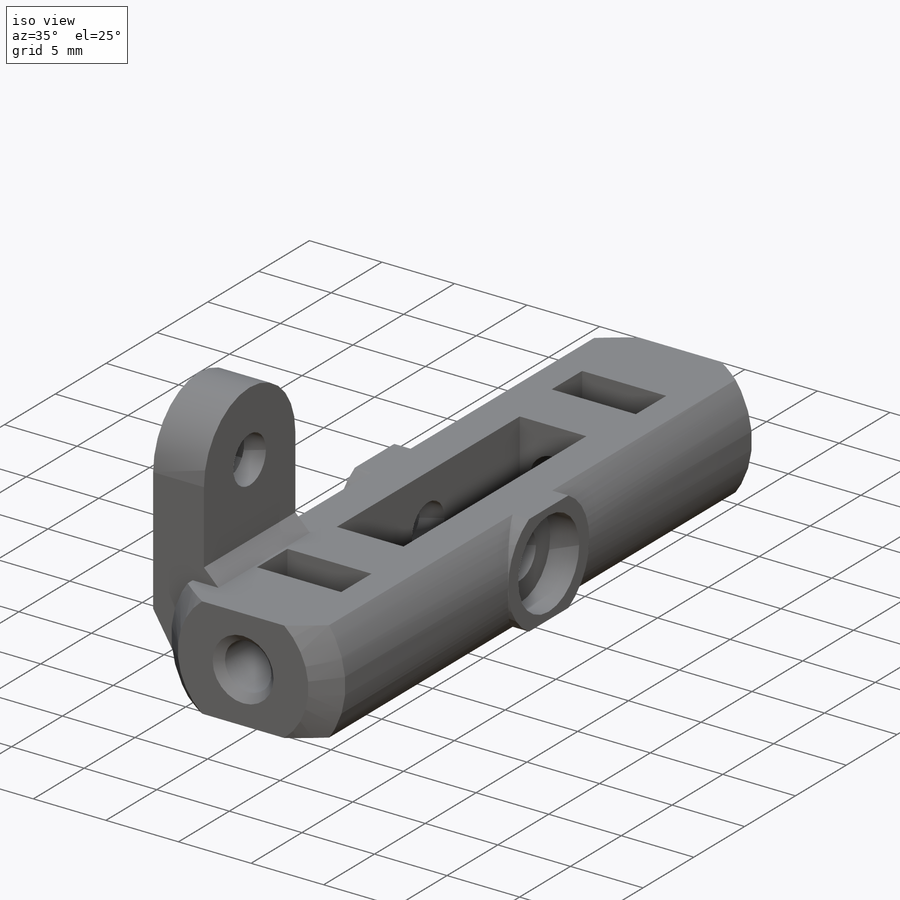
[diagram: iso view]
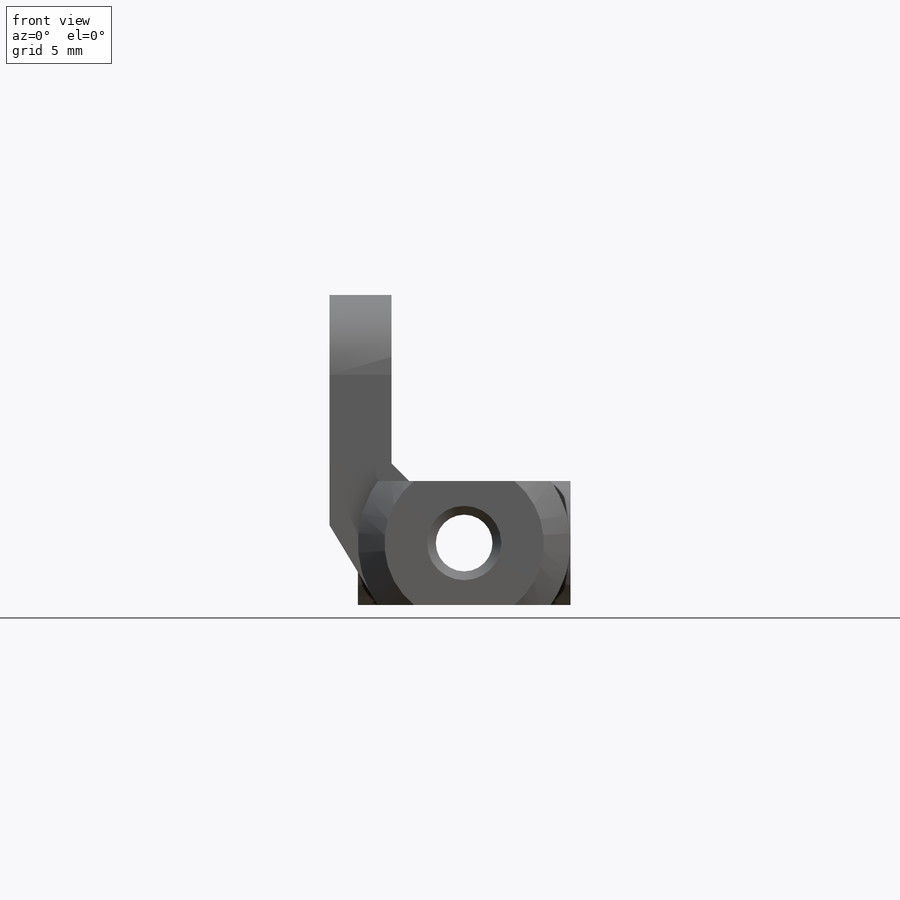
[diagram: front view]
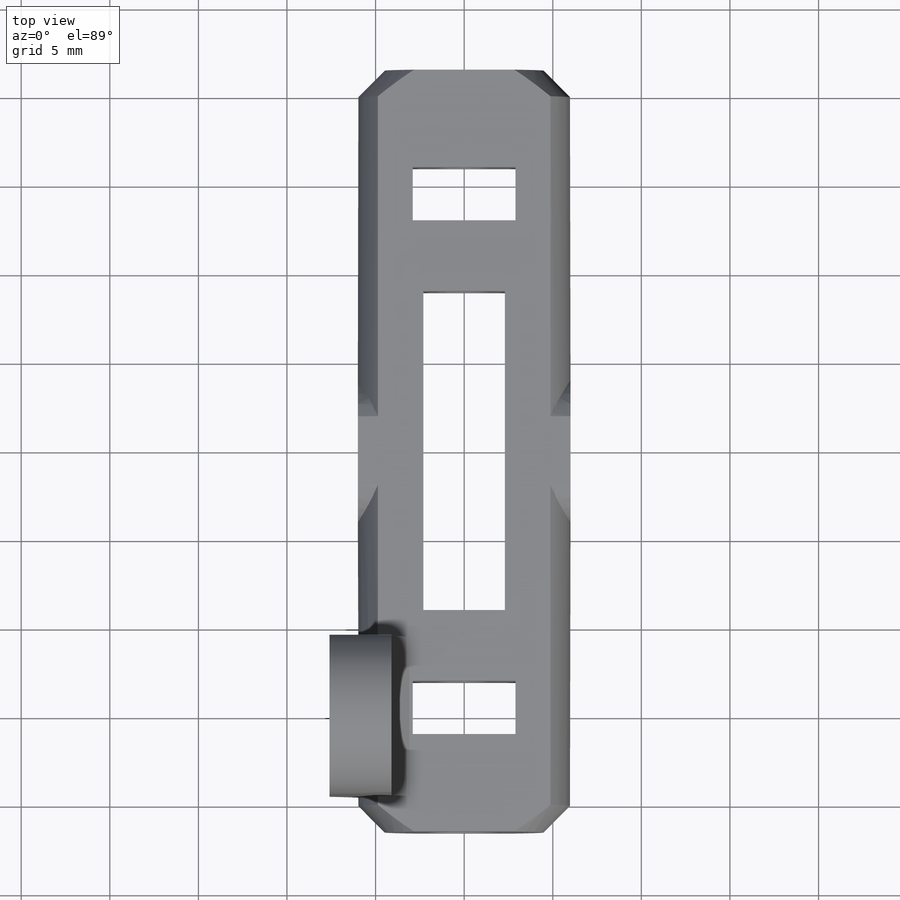
[diagram: top view]
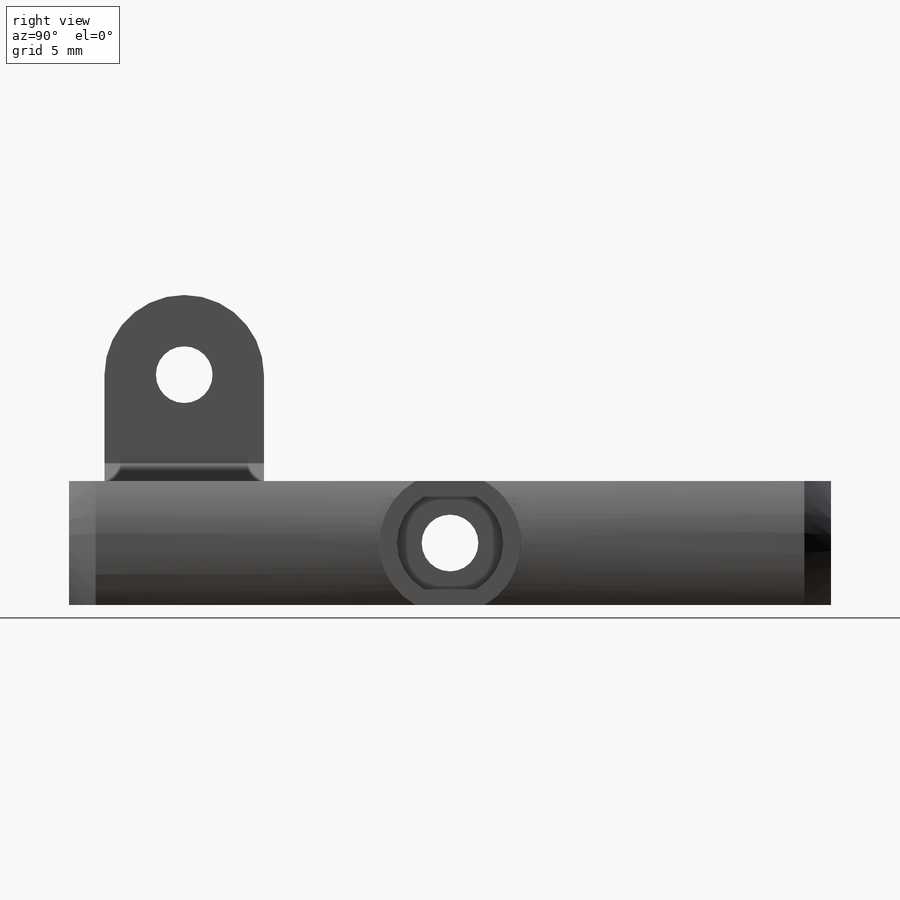
[diagram: right view]
SOLIDWORKS PART (.sldprt)
format: sldprt  version: not decoded by parser v0  size: 349,696 bytes
history: native  units: mm
features: sketch x12, cut_extrude x7, extrude x5, chamfer x2, mirror x2, material x1 (+12 scaffold rows collapsed)
feature tree (41):
  scaffold x12  (default folders/planes/origin — collapsed)
  material  "Material <not specified>"
  sketch  "Sketch1"  dims[D1=6.0mm D2=7.0mm]
  extrude  "Boss-Extrude1"  Depth=43mm
  sketch  "Sketch5"  dims[D1=8.0mm]
  extrude  "Boss-Extrude2"  Depth=12mm
  chamfer  "Chamfer1"  Distance=1.5mm Angle=45deg
  sketch  "Sketch2"  dims[D1=18.0mm D2=4.6mm]
  cut_extrude  "Cut-Extrude1"  [1 undecoded]
  sketch  "Sketch3"  dims[D1=3.2mm]
  cut_extrude  "Cut-Extrude2"  Depth=16mm
  mirror  "Mirror2"
  chamfer  "Chamfer2"  Distance=0.5mm Angle=45deg
  sketch  "Sketch4"  dims[D1=3.2mm]
  cut_extrude  "Cut-Extrude3"  [1 undecoded]
  sketch  "Sketch6"  dims[D1=6.0mm]
  cut_extrude  "Cut-Extrude4"  Depth=2mm
  sketch  "Sketch7"  dims[D1=5.6mm]
  cut_extrude  "Cut-Extrude5"  Depth=2mm
  sketch  "Sketch8"  dims[D1=6.0mm D2=4.5mm D3=15.0mm D4=9.0mm]
  extrude  "Boss-Extrude3"  Depth=3.5mm
  sketch  "Sketch9"
  extrude  "Boss-Extrude4"  [1 undecoded]
  sketch  "Sketch10"  dims[c1.D1=1.0mm c1.D2=1.0mm c2.D1=1.0mm c2.D2=1.0mm]
  extrude  "Boss-Extrude5"  [1 undecoded]
  sketch  "Sketch11"  dims[D1=5.8mm]
  cut_extrude  "Cut-Extrude6"  Depth=2mm
  sketch  "Sketch13"  dims[D1=5.8mm D2=3.0mm D3=13.0mm]
  cut_extrude  "Cut-Extrude8"  [1 undecoded]
  mirror  "Mirror4"
decode coverage: 20 of 28 modeling features carry decoded parameters
note: 5 parameter values undecoded
summary: no parameter record found for 5 features
note: suppression state not decoded; provenance and decode notes live in map.json
